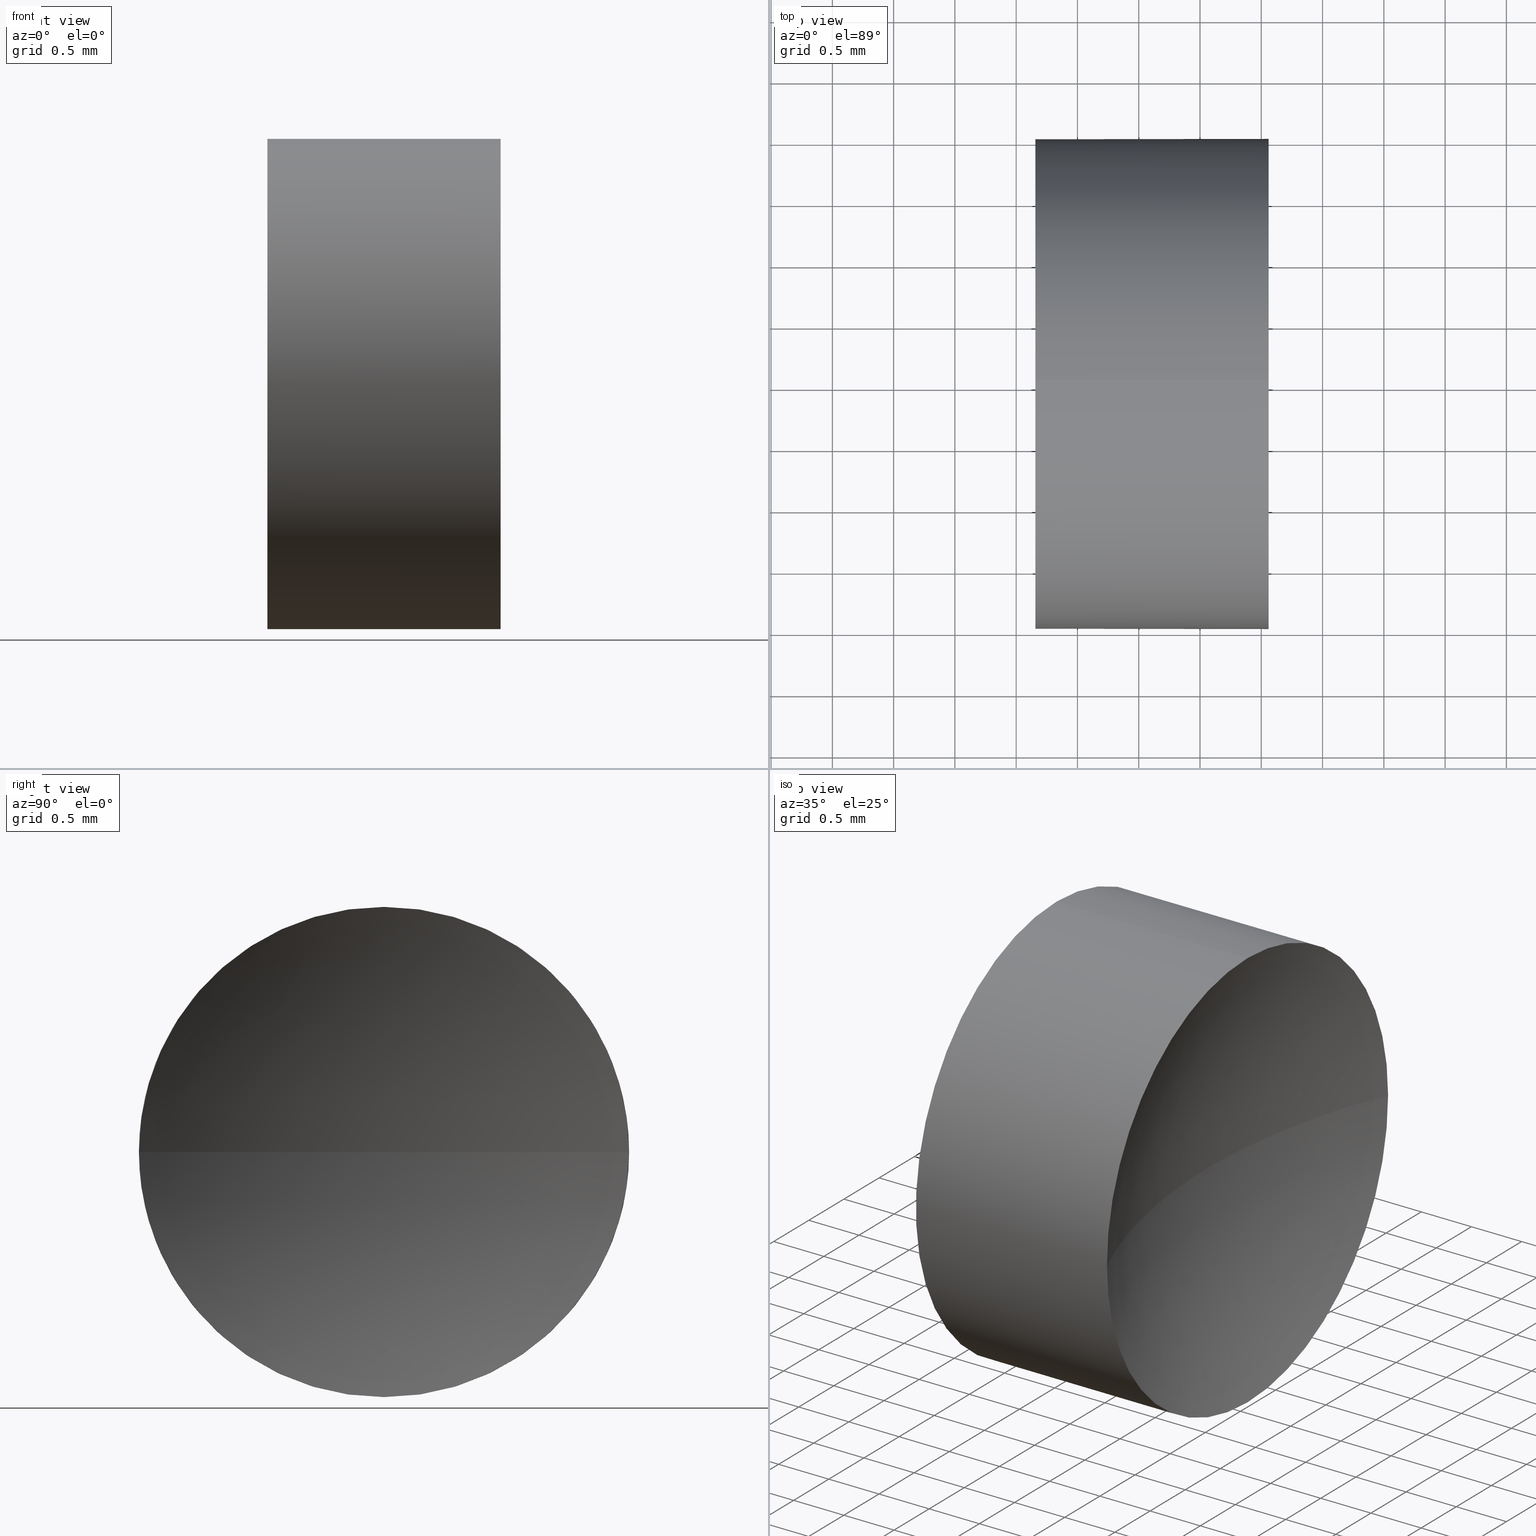
[diagram: canonical four-view strip — front | top / right | iso, engineering-drawing reading convention]
A machine part, canonical four-view strip (front | top / right | iso — engineering-drawing reading convention). The complete STEP part file that produces these views, byte-faithful:
ISO-10303-21;
HEADER;
FILE_DESCRIPTION (( 'STEP AP214' ),
    '1' );
FILE_NAME ('120122.STEP',
    '2019-06-19T01:31:25',
    ( '' ),
    ( '' ),
    'SwSTEP 2.0',
    'SolidWorks 2016',
    '' );
FILE_SCHEMA (( 'AUTOMOTIVE_DESIGN' ));
ENDSEC;

DATA;
#1 = AXIS2_PLACEMENT_3D ( 'NONE', #55, #19, #153 ) ;
#2 = LINE ( 'NONE', #148, #164 ) ;
#3 = CIRCLE ( 'NONE', #144, 2.000000000000000900 ) ;
#4 = CARTESIAN_POINT ( 'NONE',  ( 13.05950626288892900, 8.515563045701522800, 2.449293598294708900E-016 ) ) ;
#5 = DIRECTION ( 'NONE',  ( 0.0000000000000000000, 0.0000000000000000000, -1.000000000000000000 ) ) ;
#6 = COLOUR_RGB ( '',1.000000000000000000, 1.000000000000000000, 1.000000000000000000 ) ;
#7 = ORIENTED_EDGE ( 'NONE', *, *, #9, .F. ) ;
#8 = CARTESIAN_POINT ( 'NONE',  ( 13.05950626288892900, 6.515563045701520100, -2.000000000000000900 ) ) ;
#9 = EDGE_CURVE ( 'NONE', #84, #161, #23, .T. ) ;
#10 = DIRECTION ( 'NONE',  ( 0.0000000000000000000, 0.0000000000000000000, 1.000000000000000000 ) ) ;
#11 = AXIS2_PLACEMENT_3D ( 'NONE', #137, #73, #71 ) ;
#12 = CARTESIAN_POINT ( 'NONE',  ( 13.05950626288892900, 6.515563045701520100, 0.0000000000000000000 ) ) ;
#13 = PRODUCT_CONTEXT ( 'NONE', #116, 'mechanical' ) ;
#14 =( NAMED_UNIT ( * ) PLANE_ANGLE_UNIT ( ) SI_UNIT ( $, .RADIAN. ) );
#15 = PRESENTATION_STYLE_ASSIGNMENT (( #69 ) ) ;
#16 = CIRCLE ( 'NONE', #72, 2.000000000000000900 ) ;
#17 = EDGE_LOOP ( 'NONE', ( #169, #53 ) ) ;
#18 = ORIENTED_EDGE ( 'NONE', *, *, #9, .T. ) ;
#19 = DIRECTION ( 'NONE',  ( -1.000000000000000000, -0.0000000000000000000, -0.0000000000000000000 ) ) ;
#20 = AXIS2_PLACEMENT_3D ( 'NONE', #85, #10, #21 ) ;
#21 = DIRECTION ( 'NONE',  ( 0.0000000000000000000, -1.000000000000000000, 0.0000000000000000000 ) ) ;
#22 = CARTESIAN_POINT ( 'NONE',  ( 0.0000000000000000000, 0.0000000000000000000, 0.0000000000000000000 ) ) ;
#23 = CIRCLE ( 'NONE', #44, 2.000000000000000900 ) ;
#24 = MECHANICAL_DESIGN_GEOMETRIC_PRESENTATION_REPRESENTATION (  '', ( #152 ), #41 ) ;
#25 = FILL_AREA_STYLE_COLOUR ( '', #135 ) ;
#26 = FACE_OUTER_BOUND ( 'NONE', #145, .T. ) ;
#27 =( LENGTH_UNIT ( ) NAMED_UNIT ( * ) SI_UNIT ( .MILLI., .METRE. ) );
#28 = APPLICATION_CONTEXT ( 'automotive_design' ) ;
#29 = APPLICATION_PROTOCOL_DEFINITION ( 'draft international standard', 'automotive_design', 1998, #116 ) ;
#30 = ORIENTED_EDGE ( 'NONE', *, *, #79, .T. ) ;
#31 = EDGE_CURVE ( 'NONE', #84, #184, #49, .T. ) ;
#32 = SURFACE_STYLE_FILL_AREA ( #179 ) ;
#33 = CIRCLE ( 'NONE', #86, 2.000000000000000900 ) ;
#34 =( GEOMETRIC_REPRESENTATION_CONTEXT ( 3 ) GLOBAL_UNCERTAINTY_ASSIGNED_CONTEXT ( ( #46 ) ) GLOBAL_UNIT_ASSIGNED_CONTEXT ( ( #61, #167, #139 ) ) REPRESENTATION_CONTEXT ( 'NONE', 'WORKASPACE' ) );
#35 = DIRECTION ( 'NONE',  ( -1.000000000000000000, -0.0000000000000000000, -0.0000000000000000000 ) ) ;
#36 = AXIS2_PLACEMENT_3D ( 'NONE', #182, #88, #126 ) ;
#37 = CARTESIAN_POINT ( 'NONE',  ( 17.82698987586548600, 6.515563045701520100, 0.0000000000000000000 ) ) ;
#38 = PRODUCT ( '120122', '120122', '', ( #13 ) ) ;
#39 = FACE_OUTER_BOUND ( 'NONE', #105, .T. ) ;
#40 = LINE ( 'NONE', #119, #130 ) ;
#41 =( GEOMETRIC_REPRESENTATION_CONTEXT ( 3 ) GLOBAL_UNCERTAINTY_ASSIGNED_CONTEXT ( ( #133 ) ) GLOBAL_UNIT_ASSIGNED_CONTEXT ( ( #27, #14, #143 ) ) REPRESENTATION_CONTEXT ( 'NONE', 'WORKASPACE' ) );
#42 = ORIENTED_EDGE ( 'NONE', *, *, #111, .F. ) ;
#43 = DIRECTION ( 'NONE',  ( 0.0000000000000000000, 0.0000000000000000000, 1.000000000000000000 ) ) ;
#44 = AXIS2_PLACEMENT_3D ( 'NONE', #93, #35, #106 ) ;
#45 = CARTESIAN_POINT ( 'NONE',  ( 11.15698987586548600, 6.515563045701520100, 2.000000000000000900 ) ) ;
#46 = UNCERTAINTY_MEASURE_WITH_UNIT (LENGTH_MEASURE( 1.000000000000000100E-005 ), #61, 'distance_accuracy_value', 'NONE');
#47 = PRODUCT_RELATED_PRODUCT_CATEGORY ( 'part', '', ( #38 ) ) ;
#48 = FILL_AREA_STYLE ('',( #25 ) ) ;
#49 = CIRCLE ( 'NONE', #150, 5.170000000000000800 ) ;
#50 = EDGE_CURVE ( 'NONE', #161, #176, #102, .T. ) ;
#51 = AXIS2_PLACEMENT_3D ( 'NONE', #22, #63, #156 ) ;
#52 = SURFACE_STYLE_FILL_AREA ( #48 ) ;
#53 = ORIENTED_EDGE ( 'NONE', *, *, #111, .T. ) ;
#54 = DIRECTION ( 'NONE',  ( 0.0000000000000000000, -1.224646799147353200E-016, 1.000000000000000000 ) ) ;
#55 = CARTESIAN_POINT ( 'NONE',  ( 10.34201531756644400, 6.515563045701520100, 0.0000000000000000000 ) ) ;
#56 = PRODUCT_DEFINITION ( 'δ֪', '', #81, #94 ) ;
#57 = DIRECTION ( 'NONE',  ( -1.000000000000000000, -0.0000000000000000000, -0.0000000000000000000 ) ) ;
#58 = ORIENTED_EDGE ( 'NONE', *, *, #178, .T. ) ;
#59 = CARTESIAN_POINT ( 'NONE',  ( 11.15698987586548600, 6.515563045701520100, 0.0000000000000000000 ) ) ;
#60 = STYLED_ITEM ( 'NONE', ( #15 ), #155 ) ;
#61 =( LENGTH_UNIT ( ) NAMED_UNIT ( * ) SI_UNIT ( .MILLI., .METRE. ) );
#62 = SURFACE_SIDE_STYLE ('',( #32 ) ) ;
#63 = DIRECTION ( 'NONE',  ( 0.0000000000000000000, 0.0000000000000000000, 1.000000000000000000 ) ) ;
#64 = CIRCLE ( 'NONE', #121, 2.000000000000000900 ) ;
#65 = SHAPE_DEFINITION_REPRESENTATION ( #134, #82 ) ;
#66 = ORIENTED_EDGE ( 'NONE', *, *, #31, .F. ) ;
#67 = PRESENTATION_LAYER_ASSIGNMENT (  '', '', ( #60 ) ) ;
#68 = ORIENTED_EDGE ( 'NONE', *, *, #79, .F. ) ;
#69 = SURFACE_STYLE_USAGE ( .BOTH. , #62 ) ;
#70 = ORIENTED_EDGE ( 'NONE', *, *, #89, .F. ) ;
#71 = DIRECTION ( 'NONE',  ( 0.0000000000000000000, 0.0000000000000000000, -1.000000000000000000 ) ) ;
#72 = AXIS2_PLACEMENT_3D ( 'NONE', #83, #57, #95 ) ;
#73 = DIRECTION ( 'NONE',  ( 1.000000000000000000, 0.0000000000000000000, 0.0000000000000000000 ) ) ;
#74 = CIRCLE ( 'NONE', #162, 5.170000000000000800 ) ;
#75 = DIRECTION ( 'NONE',  ( 0.0000000000000000000, 0.0000000000000000000, 1.000000000000000000 ) ) ;
#76 = EDGE_CURVE ( 'NONE', #166, #84, #16, .T. ) ;
#77 = EDGE_LOOP ( 'NONE', ( #7, #117, #70, #92 ) ) ;
#78 = SURFACE_SIDE_STYLE ('',( #52 ) ) ;
#79 = EDGE_CURVE ( 'NONE', #166, #118, #40, .T. ) ;
#80 = SPHERICAL_SURFACE ( 'NONE', #36, 5.170000000000000800 ) ;
#81 = PRODUCT_DEFINITION_FORMATION_WITH_SPECIFIED_SOURCE ( '�κ�', '', #38, .NOT_KNOWN. ) ;
#82 = ADVANCED_BREP_SHAPE_REPRESENTATION ( '120122', ( #155, #51 ), #157 ) ;
#83 = CARTESIAN_POINT ( 'NONE',  ( 13.05950626288892900, 6.515563045701520100, 0.0000000000000000000 ) ) ;
#84 = VERTEX_POINT ( 'NONE', #4 ) ;
#85 = CARTESIAN_POINT ( 'NONE',  ( 17.82698987586548600, 6.515563045701520100, 0.0000000000000000000 ) ) ;
#86 = AXIS2_PLACEMENT_3D ( 'NONE', #113, #110, #87 ) ;
#87 = DIRECTION ( 'NONE',  ( 0.0000000000000000000, 0.0000000000000000000, 1.000000000000000000 ) ) ;
#88 = DIRECTION ( 'NONE',  ( 0.0000000000000000000, 0.0000000000000000000, 1.000000000000000000 ) ) ;
#89 = EDGE_CURVE ( 'NONE', #176, #184, #74, .T. ) ;
#90 = ORIENTED_EDGE ( 'NONE', *, *, #96, .T. ) ;
#91 = CARTESIAN_POINT ( 'NONE',  ( 13.05950626288892900, 6.515563045701520100, 0.0000000000000000000 ) ) ;
#92 = ORIENTED_EDGE ( 'NONE', *, *, #50, .F. ) ;
#93 = CARTESIAN_POINT ( 'NONE',  ( 13.05950626288892900, 6.515563045701520100, 0.0000000000000000000 ) ) ;
#94 = PRODUCT_DEFINITION_CONTEXT ( 'detailed design', #28, 'design' ) ;
#95 = DIRECTION ( 'NONE',  ( 0.0000000000000000000, 0.0000000000000000000, 1.000000000000000000 ) ) ;
#96 = EDGE_CURVE ( 'NONE', #161, #123, #2, .T. ) ;
#97 = FACE_OUTER_BOUND ( 'NONE', #140, .T. ) ;
#98 = ORIENTED_EDGE ( 'NONE', *, *, #89, .T. ) ;
#99 =( LENGTH_UNIT ( ) NAMED_UNIT ( * ) SI_UNIT ( .MILLI., .METRE. ) );
#100 = CLOSED_SHELL ( 'NONE', ( #108, #122, #146, #177, #163 ) ) ;
#101 = CARTESIAN_POINT ( 'NONE',  ( 10.34201531756644400, 6.515563045701520100, 0.0000000000000000000 ) ) ;
#102 = CIRCLE ( 'NONE', #115, 2.000000000000000900 ) ;
#103 = ORIENTED_EDGE ( 'NONE', *, *, #50, .T. ) ;
#104 = EDGE_CURVE ( 'NONE', #118, #123, #33, .T. ) ;
#105 = EDGE_LOOP ( 'NONE', ( #107, #103, #58, #30, #42 ) ) ;
#106 = DIRECTION ( 'NONE',  ( 0.0000000000000000000, 0.0000000000000000000, 1.000000000000000000 ) ) ;
#107 = ORIENTED_EDGE ( 'NONE', *, *, #96, .F. ) ;
#108 = ADVANCED_FACE ( 'NONE', ( #26 ), #185, .T. ) ;
#109 = AXIS2_PLACEMENT_3D ( 'NONE', #101, #125, #43 ) ;
#110 = DIRECTION ( 'NONE',  ( -1.000000000000000000, -0.0000000000000000000, -0.0000000000000000000 ) ) ;
#111 = EDGE_CURVE ( 'NONE', #123, #118, #64, .T. ) ;
#112 = PRESENTATION_LAYER_ASSIGNMENT (  '', '', ( #152 ) ) ;
#113 = CARTESIAN_POINT ( 'NONE',  ( 11.15698987586548600, 6.515563045701520100, 0.0000000000000000000 ) ) ;
#114 = ORIENTED_EDGE ( 'NONE', *, *, #104, .F. ) ;
#115 = AXIS2_PLACEMENT_3D ( 'NONE', #91, #120, #149 ) ;
#116 = APPLICATION_CONTEXT ( 'automotive_design' ) ;
#117 = ORIENTED_EDGE ( 'NONE', *, *, #31, .T. ) ;
#118 = VERTEX_POINT ( 'NONE', #45 ) ;
#119 = CARTESIAN_POINT ( 'NONE',  ( 10.34201531756644400, 6.515563045701520100, 2.000000000000000900 ) ) ;
#120 = DIRECTION ( 'NONE',  ( -1.000000000000000000, -0.0000000000000000000, -0.0000000000000000000 ) ) ;
#121 = AXIS2_PLACEMENT_3D ( 'NONE', #59, #154, #127 ) ;
#122 = ADVANCED_FACE ( 'NONE', ( #173 ), #151, .F. ) ;
#123 = VERTEX_POINT ( 'NONE', #128 ) ;
#124 = FILL_AREA_STYLE_COLOUR ( '', #6 ) ;
#125 = DIRECTION ( 'NONE',  ( -1.000000000000000000, -0.0000000000000000000, -0.0000000000000000000 ) ) ;
#126 = DIRECTION ( 'NONE',  ( 0.0000000000000000000, -1.000000000000000000, 0.0000000000000000000 ) ) ;
#127 = DIRECTION ( 'NONE',  ( 0.0000000000000000000, 0.0000000000000000000, 1.000000000000000000 ) ) ;
#128 = CARTESIAN_POINT ( 'NONE',  ( 11.15698987586548600, 6.515563045701520100, -2.000000000000000900 ) ) ;
#129 = DIRECTION ( 'NONE',  ( -1.000000000000000000, -0.0000000000000000000, -0.0000000000000000000 ) ) ;
#130 = VECTOR ( 'NONE', #131, 1000.000000000000000 ) ;
#131 = DIRECTION ( 'NONE',  ( -1.000000000000000000, -0.0000000000000000000, -0.0000000000000000000 ) ) ;
#132 = DIRECTION ( 'NONE',  ( -1.000000000000000000, -0.0000000000000000000, -0.0000000000000000000 ) ) ;
#133 = UNCERTAINTY_MEASURE_WITH_UNIT (LENGTH_MEASURE( 1.000000000000000100E-005 ), #27, 'distance_accuracy_value', 'NONE');
#134 = PRODUCT_DEFINITION_SHAPE ( 'NONE', 'NONE',  #56 ) ;
#135 = COLOUR_RGB ( '',1.000000000000000000, 1.000000000000000000, 1.000000000000000000 ) ;
#136 = DIRECTION ( 'NONE',  ( -1.000000000000000000, 0.0000000000000000000, 0.0000000000000000000 ) ) ;
#137 = CARTESIAN_POINT ( 'NONE',  ( 11.15698987586548600, 6.515563045701520100, 0.0000000000000000000 ) ) ;
#138 = CARTESIAN_POINT ( 'NONE',  ( 12.65698987586548400, 6.515563045701520100, 0.0000000000000000000 ) ) ;
#139 =( NAMED_UNIT ( * ) SI_UNIT ( $, .STERADIAN. ) SOLID_ANGLE_UNIT ( ) );
#140 = EDGE_LOOP ( 'NONE', ( #66, #172, #158, #98 ) ) ;
#141 = SURFACE_STYLE_USAGE ( .BOTH. , #78 ) ;
#142 = CYLINDRICAL_SURFACE ( 'NONE', #109, 2.000000000000000900 ) ;
#143 =( NAMED_UNIT ( * ) SI_UNIT ( $, .STERADIAN. ) SOLID_ANGLE_UNIT ( ) );
#144 = AXIS2_PLACEMENT_3D ( 'NONE', #12, #129, #75 ) ;
#145 = EDGE_LOOP ( 'NONE', ( #18, #90, #114, #68, #175 ) ) ;
#146 = ADVANCED_FACE ( 'NONE', ( #97 ), #80, .F. ) ;
#147 = DIRECTION ( 'NONE',  ( 0.0000000000000000000, -1.000000000000000000, -1.224646799147353200E-016 ) ) ;
#148 = CARTESIAN_POINT ( 'NONE',  ( 10.34201531756644400, 6.515563045701520100, -2.000000000000000900 ) ) ;
#149 = DIRECTION ( 'NONE',  ( 0.0000000000000000000, 0.0000000000000000000, 1.000000000000000000 ) ) ;
#150 = AXIS2_PLACEMENT_3D ( 'NONE', #160, #54, #147 ) ;
#151 = SPHERICAL_SURFACE ( 'NONE', #20, 5.170000000000000800 ) ;
#152 = STYLED_ITEM ( 'NONE', ( #159 ), #82 ) ;
#153 = DIRECTION ( 'NONE',  ( 0.0000000000000000000, 0.0000000000000000000, 1.000000000000000000 ) ) ;
#154 = DIRECTION ( 'NONE',  ( -1.000000000000000000, -0.0000000000000000000, -0.0000000000000000000 ) ) ;
#155 = MANIFOLD_SOLID_BREP ( '��ת1', #100 ) ;
#156 = DIRECTION ( 'NONE',  ( 1.000000000000000000, 0.0000000000000000000, 0.0000000000000000000 ) ) ;
#157 =( GEOMETRIC_REPRESENTATION_CONTEXT ( 3 ) GLOBAL_UNCERTAINTY_ASSIGNED_CONTEXT ( ( #174 ) ) GLOBAL_UNIT_ASSIGNED_CONTEXT ( ( #99, #170, #186 ) ) REPRESENTATION_CONTEXT ( 'NONE', 'WORKASPACE' ) );
#158 = ORIENTED_EDGE ( 'NONE', *, *, #178, .F. ) ;
#159 = PRESENTATION_STYLE_ASSIGNMENT (( #141 ) ) ;
#160 = CARTESIAN_POINT ( 'NONE',  ( 17.82698987586548600, 6.515563045701520100, 0.0000000000000000000 ) ) ;
#161 = VERTEX_POINT ( 'NONE', #8 ) ;
#162 = AXIS2_PLACEMENT_3D ( 'NONE', #37, #5, #136 ) ;
#163 = ADVANCED_FACE ( 'NONE', ( #180 ), #168, .F. ) ;
#164 = VECTOR ( 'NONE', #132, 1000.000000000000000 ) ;
#165 = CARTESIAN_POINT ( 'NONE',  ( 13.05950626288892900, 4.515563045701518300, 0.0000000000000000000 ) ) ;
#166 = VERTEX_POINT ( 'NONE', #183 ) ;
#167 =( NAMED_UNIT ( * ) PLANE_ANGLE_UNIT ( ) SI_UNIT ( $, .RADIAN. ) );
#168 = PLANE ( 'NONE',  #11 ) ;
#169 = ORIENTED_EDGE ( 'NONE', *, *, #104, .T. ) ;
#170 =( NAMED_UNIT ( * ) PLANE_ANGLE_UNIT ( ) SI_UNIT ( $, .RADIAN. ) );
#171 = APPLICATION_PROTOCOL_DEFINITION ( 'draft international standard', 'automotive_design', 1998, #28 ) ;
#172 = ORIENTED_EDGE ( 'NONE', *, *, #76, .F. ) ;
#173 = FACE_OUTER_BOUND ( 'NONE', #77, .T. ) ;
#174 = UNCERTAINTY_MEASURE_WITH_UNIT (LENGTH_MEASURE( 1.000000000000000100E-005 ), #99, 'distance_accuracy_value', 'NONE');
#175 = ORIENTED_EDGE ( 'NONE', *, *, #76, .T. ) ;
#176 = VERTEX_POINT ( 'NONE', #165 ) ;
#177 = ADVANCED_FACE ( 'NONE', ( #39 ), #142, .T. ) ;
#178 = EDGE_CURVE ( 'NONE', #176, #166, #3, .T. ) ;
#179 = FILL_AREA_STYLE ('',( #124 ) ) ;
#180 = FACE_OUTER_BOUND ( 'NONE', #17, .T. ) ;
#181 = MECHANICAL_DESIGN_GEOMETRIC_PRESENTATION_REPRESENTATION (  '', ( #60 ), #34 ) ;
#182 = CARTESIAN_POINT ( 'NONE',  ( 17.82698987586548600, 6.515563045701520100, 0.0000000000000000000 ) ) ;
#183 = CARTESIAN_POINT ( 'NONE',  ( 13.05950626288892900, 6.515563045701520100, 2.000000000000000900 ) ) ;
#184 = VERTEX_POINT ( 'NONE', #138 ) ;
#185 = CYLINDRICAL_SURFACE ( 'NONE', #1, 2.000000000000000900 ) ;
#186 =( NAMED_UNIT ( * ) SI_UNIT ( $, .STERADIAN. ) SOLID_ANGLE_UNIT ( ) );
ENDSEC;
END-ISO-10303-21;
